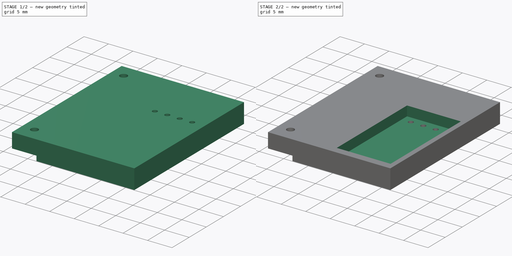
[diagram: build sequence overview — one tinted view per stage of 2, left to right]
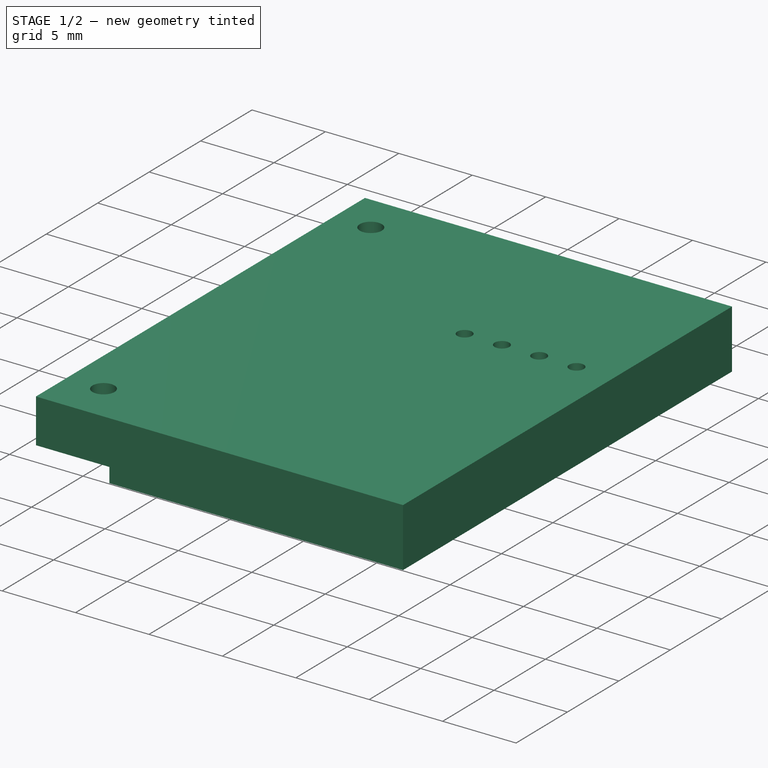
[diagram: stage 1 of 2 — iso view after this stage's code; geometry added in this stage tinted green]
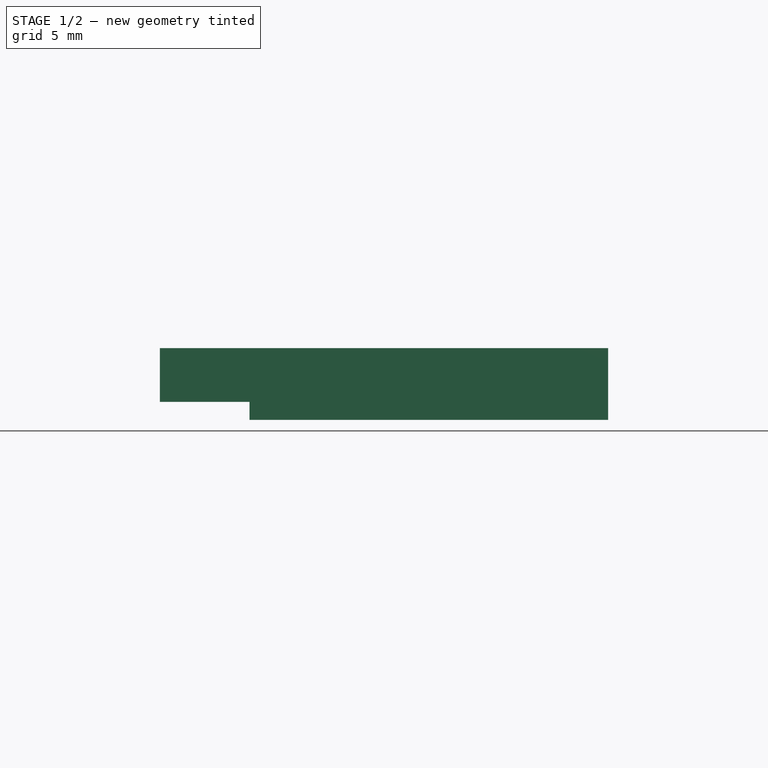
[diagram: stage 1 of 2 — front view after this stage's code; geometry added in this stage tinted green]
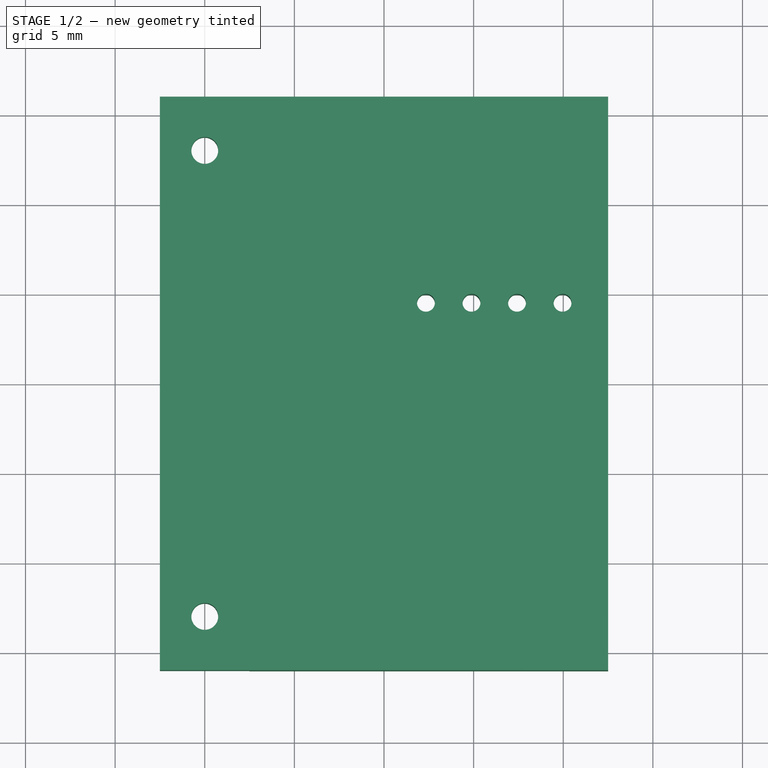
[diagram: stage 1 of 2 — top view after this stage's code; geometry added in this stage tinted green]
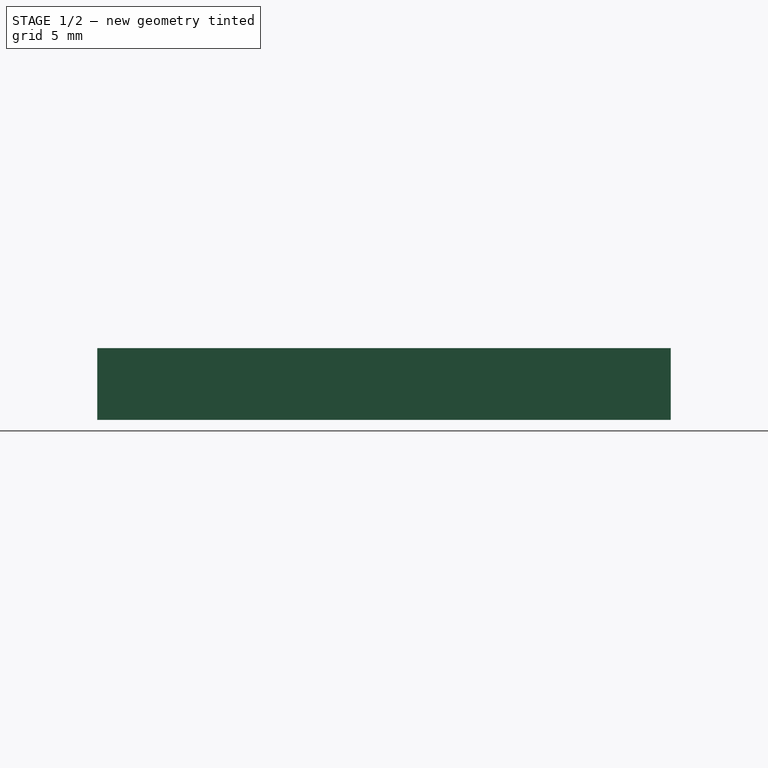
[diagram: stage 1 of 2 — right view after this stage's code; geometry added in this stage tinted green]
FCSTD DOCUMENT  (FreeCAD 0.19R24276 (Git))
Label: TFT_esp32holder
License: All rights reserved
LicenseURL: http://en.wikipedia.org/wiki/All_rights_reserved
objects: Sketcher::SketchObject×4, PartDesign::Pocket×3, PartDesign::Pad×1, PartDesign::Body×1
note: 13 computed .brp shape members not serialized (recipe doc carries the construction recipe); baked Part::Feature solids carry a one-line shape summary decoded from their .brp

FEATURE [Sketcher::SketchObject] Sketch
  FullyConstrained = true
  MapMode = 5
  Support = -> [XY_Plane]
  sketch-geometry (10):
    g0: LineSegment StartX=-12.5 StartY=16 StartZ=0 EndX=12.5 EndY=16 EndZ=0
    g1: LineSegment StartX=12.5 StartY=16 StartZ=0 EndX=12.5 EndY=-16 EndZ=0
    g2: LineSegment StartX=12.5 StartY=-16 StartZ=0 EndX=-12.5 EndY=-16 EndZ=0
    g3: LineSegment StartX=-12.5 StartY=-16 StartZ=0 EndX=-12.5 EndY=16 EndZ=0
    g4: Circle CenterX=-10 CenterY=13 CenterZ=0 NormalX=0 NormalY=0 NormalZ=1 AngleXU=0 Radius=0.75
    g5: Circle CenterX=-10 CenterY=-13 CenterZ=0 NormalX=0 NormalY=0 NormalZ=1 AngleXU=0 Radius=0.75
    g6: Circle CenterX=2.34 CenterY=4.5 CenterZ=0 NormalX=0 NormalY=0 NormalZ=1 AngleXU=0 Radius=0.5
    g7: Circle CenterX=4.88 CenterY=4.5 CenterZ=0 NormalX=0 NormalY=0 NormalZ=1 AngleXU=0 Radius=0.5
    g8: Circle CenterX=7.42 CenterY=4.5 CenterZ=0 NormalX=0 NormalY=0 NormalZ=1 AngleXU=0 Radius=0.5
    g9: Circle CenterX=9.96 CenterY=4.5 CenterZ=0 NormalX=0 NormalY=0 NormalZ=1 AngleXU=0 Radius=0.5
  constraints (27):
    c: Coincident(g0,g1)
    c: Coincident(g1,g2)
    c: Coincident(g2,g3)
    c: Coincident(g3,g0)
    c: Horizontal(g2)
    c: Vertical(g3)
    c: DistanceX(g0,g0) = 25
    c: Symmetric(g0,g0,g-2)
    c: DistanceY(g1,g1) = 32
    c: Symmetric(g0,g1,g-1)
    c: DistanceY(g5,g4) = 26
    c: Symmetric(g4,g5,g-1)
    c: DistanceX(g2,g5) = 2.5
    c: Radius(g5) = 0.75
    c: Equal(g5,g4)
    c: DistanceX(g6,g7) = 2.54
    c: DistanceX(g7,g8) = 2.54
    c: DistanceX(g8,g9) = 2.54
    c: Horizontal(g6,g7)
    c: Horizontal(g7,g8)
    c: Horizontal(g8,g9)
    c: Radius(g6) = 0.5
    c: Equal(g6,g7)
    c: Equal(g6,g8)
    c: Equal(g6,g9)
    c: DistanceY(g1,g9) = 20.5
    c: DistanceX(g9,g0) = 2.54
FEATURE [PartDesign::Pad] Pad
  Direction = (1,1,1)
  Length = 4
  Length2 = 100
  Profile = -> Sketch
  Type = 0
FEATURE [Sketcher::SketchObject] Sketch001
  ExternalGeometry = -> [Pad]
  FullyConstrained = true
  MapMode = 5
  Placement = pos=(0,0,0) rot=(1,0,0;3.14159rad)
  Support = -> [Pad]
  sketch-geometry (4):
    g0: LineSegment StartX=-12.5 StartY=16 StartZ=0 EndX=-7.5 EndY=16 EndZ=0
    g1: LineSegment StartX=-7.5 StartY=16 StartZ=0 EndX=-7.5 EndY=-16 EndZ=0
    g2: LineSegment StartX=-7.5 StartY=-16 StartZ=0 EndX=-12.5 EndY=-16 EndZ=0
    g3: LineSegment StartX=-12.5 StartY=-16 StartZ=0 EndX=-12.5 EndY=16 EndZ=0
  constraints (11):
    c: Coincident(g0,g1)
    c: Coincident(g1,g2)
    c: Coincident(g2,g3)
    c: Coincident(g3,g0)
    c: Horizontal(g0)
    c: Horizontal(g2)
    c: Vertical(g1)
    c: Vertical(g3)
    c: Coincident(g0,g-3)
    c: DistanceX(g0,g0) = 5
    c: DistanceY(g3,g3) = 32
FEATURE [PartDesign::Pocket] Pocket
  BaseFeature = -> Pad
  Length = 1
  Length2 = 100
  Profile = -> Sketch001
  Type = 0
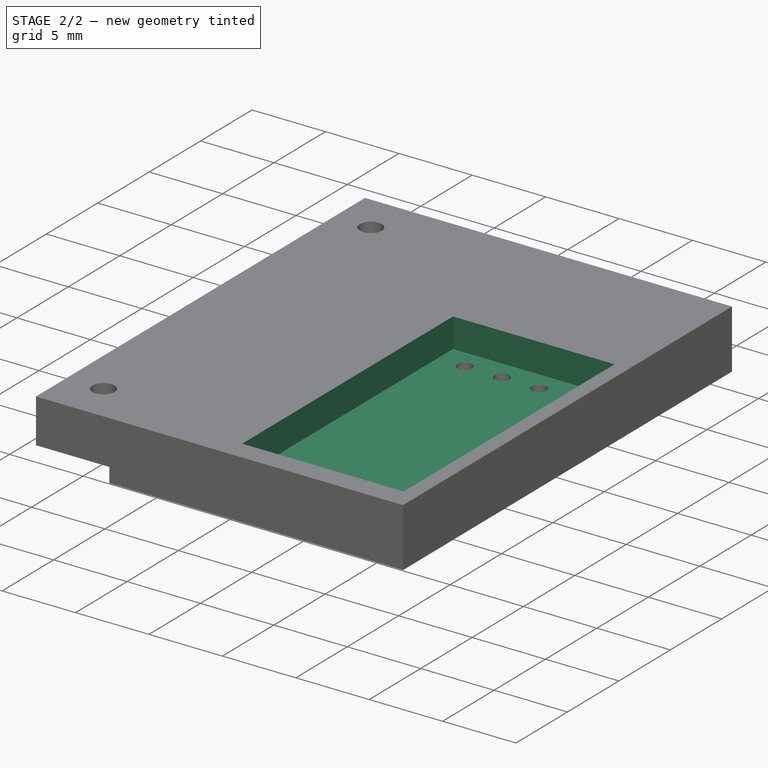
[diagram: stage 2 of 2 — iso view after this stage's code; geometry added in this stage tinted green]
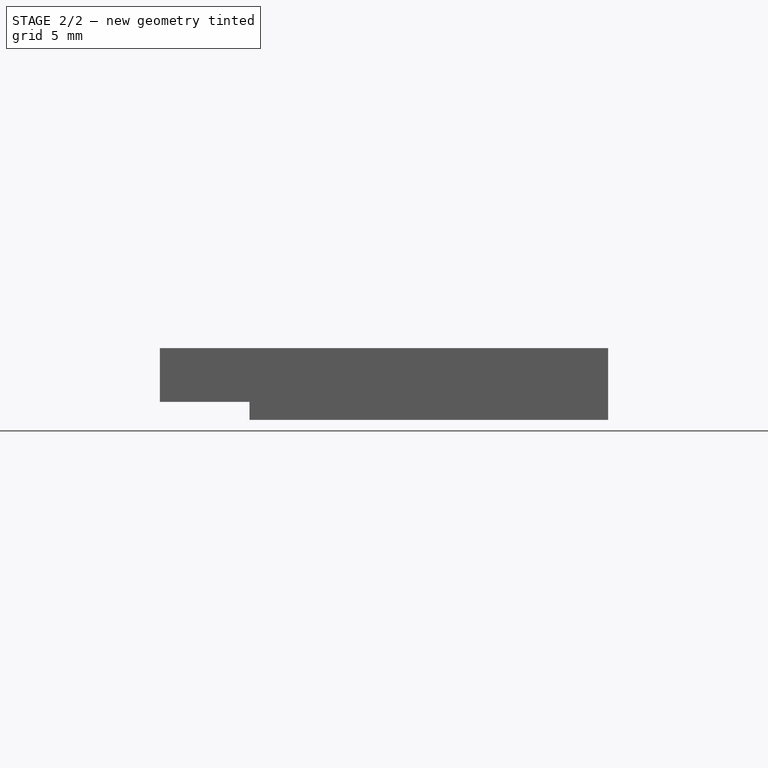
[diagram: stage 2 of 2 — front view after this stage's code; geometry added in this stage tinted green]
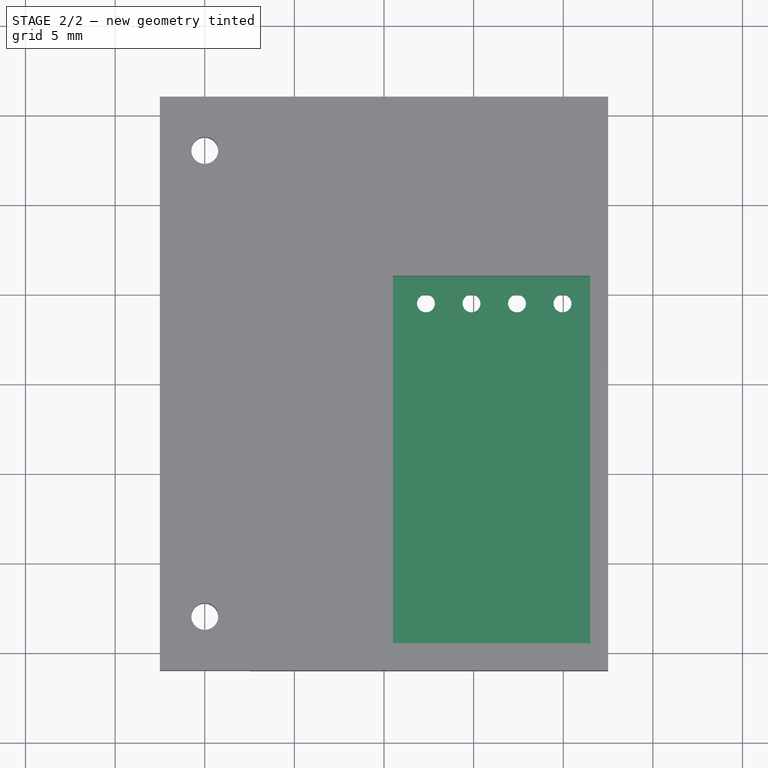
[diagram: stage 2 of 2 — top view after this stage's code; geometry added in this stage tinted green]
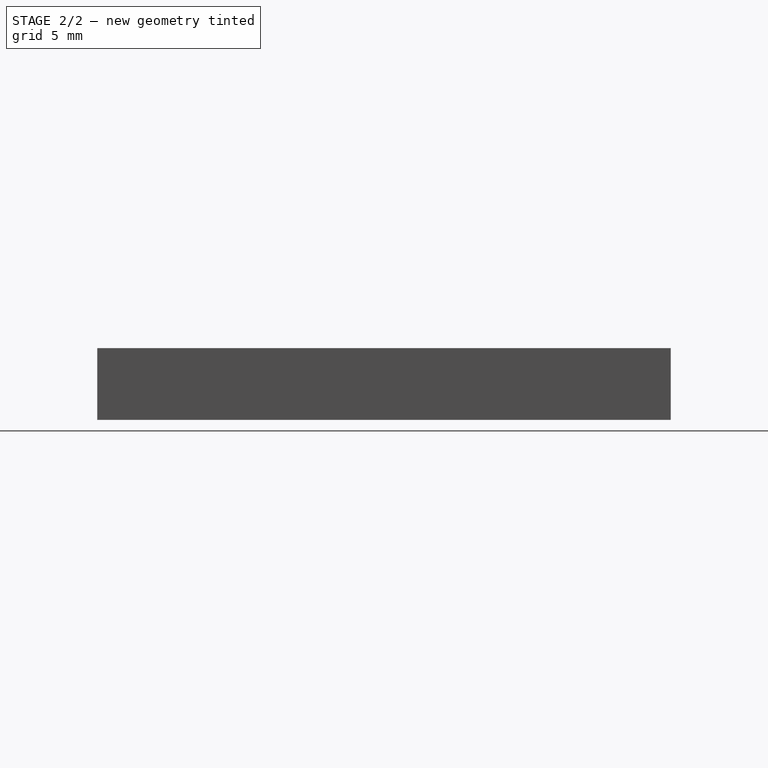
[diagram: stage 2 of 2 — right view after this stage's code; geometry added in this stage tinted green]
FEATURE [Sketcher::SketchObject] Sketch002
  ExternalGeometry = -> [Pocket]
  FullyConstrained = true
  MapMode = 5
  Placement = pos=(0,0,4) rot=(0,0,1;0rad)
  Support = -> [Pocket]
  sketch-geometry (4):
    g0: LineSegment StartX=0.5 StartY=6 StartZ=0 EndX=11.5 EndY=6 EndZ=0
    g1: LineSegment StartX=11.5 StartY=6 StartZ=0 EndX=11.5 EndY=-14.5 EndZ=0
    g2: LineSegment StartX=11.5 StartY=-14.5 StartZ=0 EndX=0.5 EndY=-14.5 EndZ=0
    g3: LineSegment StartX=0.5 StartY=-14.5 StartZ=0 EndX=0.5 EndY=6 EndZ=0
  constraints (12):
    c: Coincident(g0,g1)
    c: Coincident(g1,g2)
    c: Coincident(g2,g3)
    c: Coincident(g3,g0)
    c: Horizontal(g0)
    c: Horizontal(g2)
    c: Vertical(g1)
    c: Vertical(g3)
    c: DistanceX(g0,g0) = 11
    c: DistanceY(g1,g1) = 20.5
    c: DistanceX(g0,g-3) = 1
    c: DistanceY(g-3,g1) = 1.5
FEATURE [PartDesign::Pocket] Pocket001
  BaseFeature = -> Pocket
  Length = 2
  Length2 = 100
  Profile = -> Sketch002
  Type = 0
FEATURE [Sketcher::SketchObject] Sketch003
  ExternalGeometry = -> [Pocket001]
  FullyConstrained = true
  MapMode = 5
  Placement = pos=(0,0,0) rot=(1,0,0;3.14159rad)
  Support = -> [Pocket001]
  sketch-geometry (16):
    g0: LineSegment StartX=1.83 StartY=-4 StartZ=0 EndX=2.83 EndY=-4 EndZ=0
    g1: LineSegment StartX=2.83 StartY=-4 StartZ=0 EndX=2.83 EndY=-16 EndZ=0
    g2: LineSegment StartX=2.83 StartY=-16 StartZ=0 EndX=1.83 EndY=-16 EndZ=0
    g3: LineSegment StartX=1.83 StartY=-16 StartZ=0 EndX=1.83 EndY=-4 EndZ=0
    g4: LineSegment StartX=4.37 StartY=-4 StartZ=0 EndX=5.37 EndY=-4 EndZ=0
    g5: LineSegment StartX=5.37 StartY=-4 StartZ=0 EndX=5.37 EndY=-16 EndZ=0
    g6: LineSegment StartX=5.37 StartY=-16 StartZ=0 EndX=4.37 EndY=-16 EndZ=0
    g7: LineSegment StartX=4.37 StartY=-16 StartZ=0 EndX=4.37 EndY=-4 EndZ=0
    g8: LineSegment StartX=6.91 StartY=-4 StartZ=0 EndX=7.91 EndY=-4 EndZ=0
    g9: LineSegment StartX=7.91 StartY=-4 StartZ=0 EndX=7.91 EndY=-16 EndZ=0
    g10: LineSegment StartX=7.91 StartY=-16 StartZ=0 EndX=6.91 EndY=-16 EndZ=0
    g11: LineSegment StartX=6.91 StartY=-16 StartZ=0 EndX=6.91 EndY=-4 EndZ=0
    g12: LineSegment StartX=9.45 StartY=-4 StartZ=0 EndX=10.45 EndY=-4 EndZ=0
    g13: LineSegment StartX=10.45 StartY=-4 StartZ=0 EndX=10.45 EndY=-16 EndZ=0
    g14: LineSegment StartX=10.45 StartY=-16 StartZ=0 EndX=9.45 EndY=-16 EndZ=0
    g15: LineSegment StartX=9.45 StartY=-16 StartZ=0 EndX=9.45 EndY=-4 EndZ=0
  constraints (48):
    c: Coincident(g0,g1)
    c: Coincident(g1,g2)
    c: Coincident(g2,g3)
    c: Coincident(g3,g0)
    c: Horizontal(g0)
    c: Horizontal(g2)
    c: Vertical(g1)
    c: Vertical(g3)
    c: Coincident(g4,g5)
    c: Coincident(g5,g6)
    c: Coincident(g6,g7)
    c: Coincident(g7,g4)
    c: Horizontal(g4)
    c: Horizontal(g6)
    c: Vertical(g5)
    c: Vertical(g7)
    c: Coincident(g8,g9)
    c: Coincident(g9,g10)
    c: Coincident(g10,g11)
    c: Coincident(g11,g8)
    c: Horizontal(g8)
    c: Horizontal(g10)
    c: Vertical(g9)
    c: Vertical(g11)
    c: Coincident(g12,g13)
    c: Coincident(g13,g14)
    c: Coincident(g14,g15)
    c: Coincident(g15,g12)
    c: Horizontal(g12)
    c: Horizontal(g14)
    c: Vertical(g13)
    c: Vertical(g15)
    c: DistanceX(g0,g0) = 1
    c: Equal(g0,g4)
    c: Equal(g4,g8)
    c: Equal(g8,g12)
    c: DistanceY(g1,g1) = 12
    c: Equal(g3,g7)
    c: Equal(g7,g11)
    c: Equal(g11,g15)
    c: DistanceY(g-3,g2) = 0
    c: DistanceY(g-3,g6) = 0
    c: DistanceY(g-3,g10) = 0
    c: DistanceY(g-3,g14) = 0
    c: DistanceX(g0,g4) = 2.54
    c: DistanceX(g4,g8) = 2.54
    c: DistanceX(g8,g12) = 2.54
    c: DistanceX(g12,g-3) = 2.05
FEATURE [PartDesign::Pocket] Pocket002
  BaseFeature = -> Pocket001
  Length = 1
  Length2 = 100
  Profile = -> Sketch003
  Type = 0
FEATURE [PartDesign::Body] Body
  Group = -> [Sketch,Pad,Sketch001,Pocket,Sketch002,Pocket001,Sketch003,Pocket002]
  Origin = -> Origin
  Tip = -> Pocket002
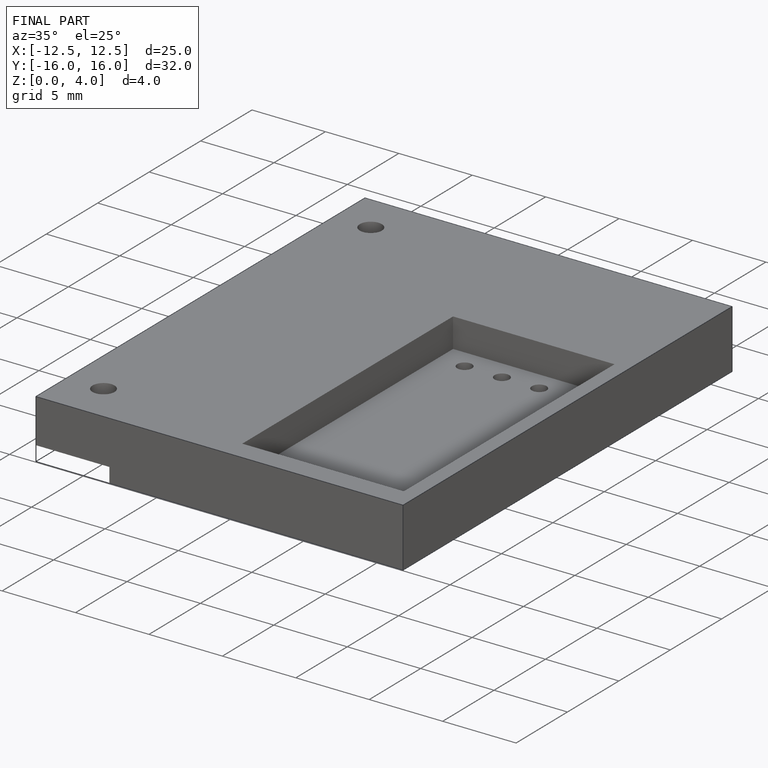
[diagram: finished part — iso view with bounding-box wireframe]
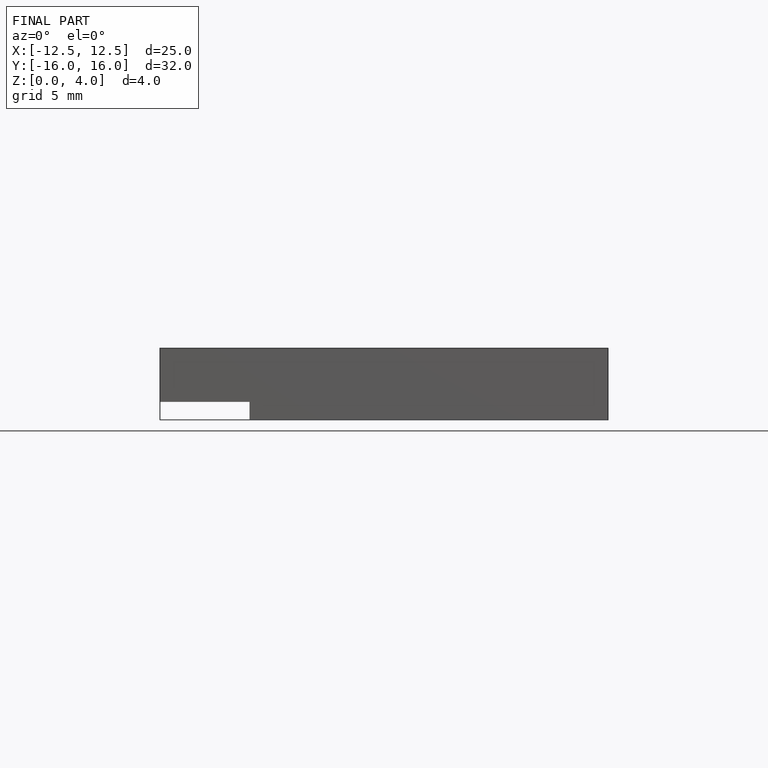
[diagram: finished part — front view with bounding-box wireframe]
